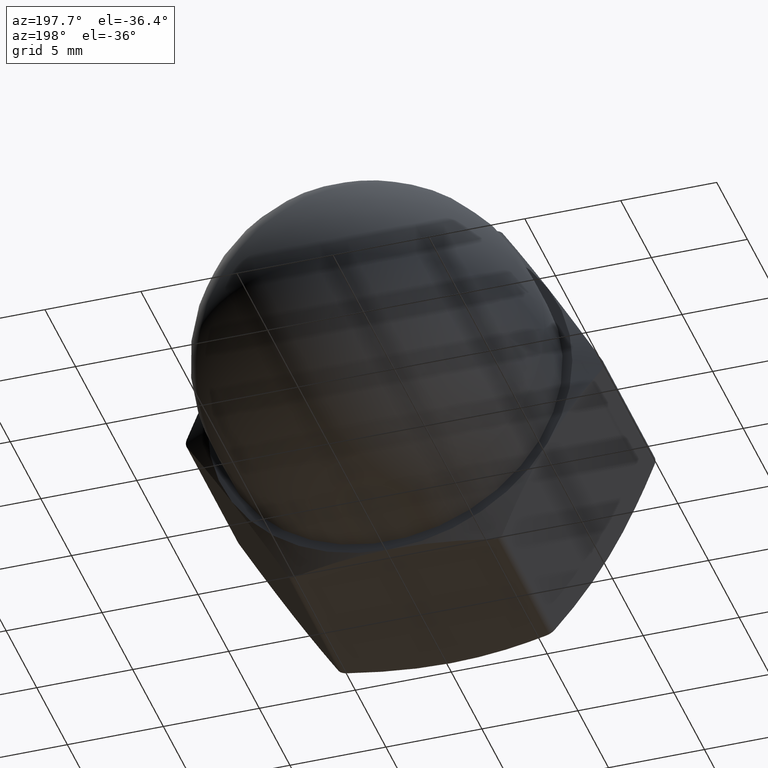
[diagram: clean part render]
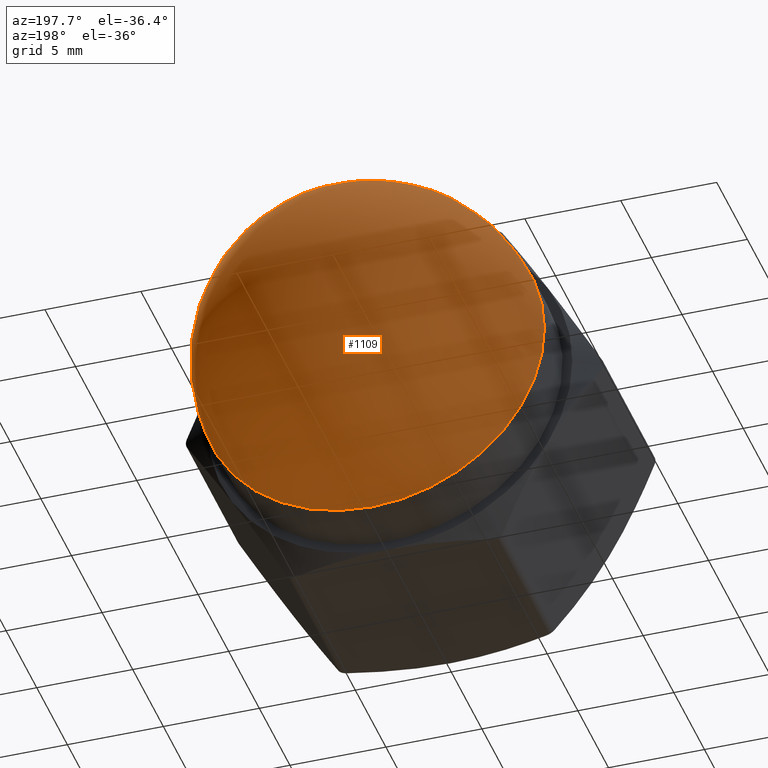
[diagram: same view with one face highlighted and labeled with its STEP entity id]
A machine part, auxiliary view. The second image highlights one B-rep face of the part: STEP entity #1109.
In plain terms, the highlighted spherical surface has radius 9 mm.
Its self-contained STEP definition (entity closure, byte-faithful):
#70 = CIRCLE ( 'NONE', #94, 9.000000000000001800 ) ;
#94 = AXIS2_PLACEMENT_3D ( 'NONE', #1011, #810, #279 ) ;
#279 = DIRECTION ( 'NONE',  ( -1.000000000000000000, -1.927470528863118600E-016, 0.0000000000000000000 ) ) ;
#283 = SPHERICAL_SURFACE ( 'NONE', #1037, 9.000000000000000000 ) ;
#438 = ORIENTED_EDGE ( 'NONE', *, *, #839, .T. ) ;
#529 = FACE_OUTER_BOUND ( 'NONE', #835, .T. ) ;
#723 = DIRECTION ( 'NONE',  ( 0.0000000000000000000, 0.0000000000000000000, -1.000000000000000000 ) ) ;
#810 = DIRECTION ( 'NONE',  ( -1.428754599005245400E-016, 1.000000000000000000, -0.0000000000000000000 ) ) ;
#835 = EDGE_LOOP ( 'NONE', ( #438 ) ) ;
#839 = EDGE_CURVE ( 'NONE', #1015, #1015, #70, .T. ) ;
#1011 = CARTESIAN_POINT ( 'NONE',  ( 7.960204194457791500E-016, 13.00000000000000400, 0.0000000000000000000 ) ) ;
#1015 = VERTEX_POINT ( 'NONE', #1332 ) ;
#1037 = AXIS2_PLACEMENT_3D ( 'NONE', #1365, #723, #1047 ) ;
#1047 = DIRECTION ( 'NONE',  ( 1.000000000000000000, 1.927470528863119000E-016, 0.0000000000000000000 ) ) ;
#1109 = ADVANCED_FACE ( 'NONE', ( #529 ), #283, .T. ) ;
#1332 = CARTESIAN_POINT ( 'NONE',  ( -9.000000000000001800, 13.00000000000000200, 0.0000000000000000000 ) ) ;
#1365 = CARTESIAN_POINT ( 'NONE',  ( 7.960204194457796500E-016, 13.00000000000000000, 0.0000000000000000000 ) ) ;